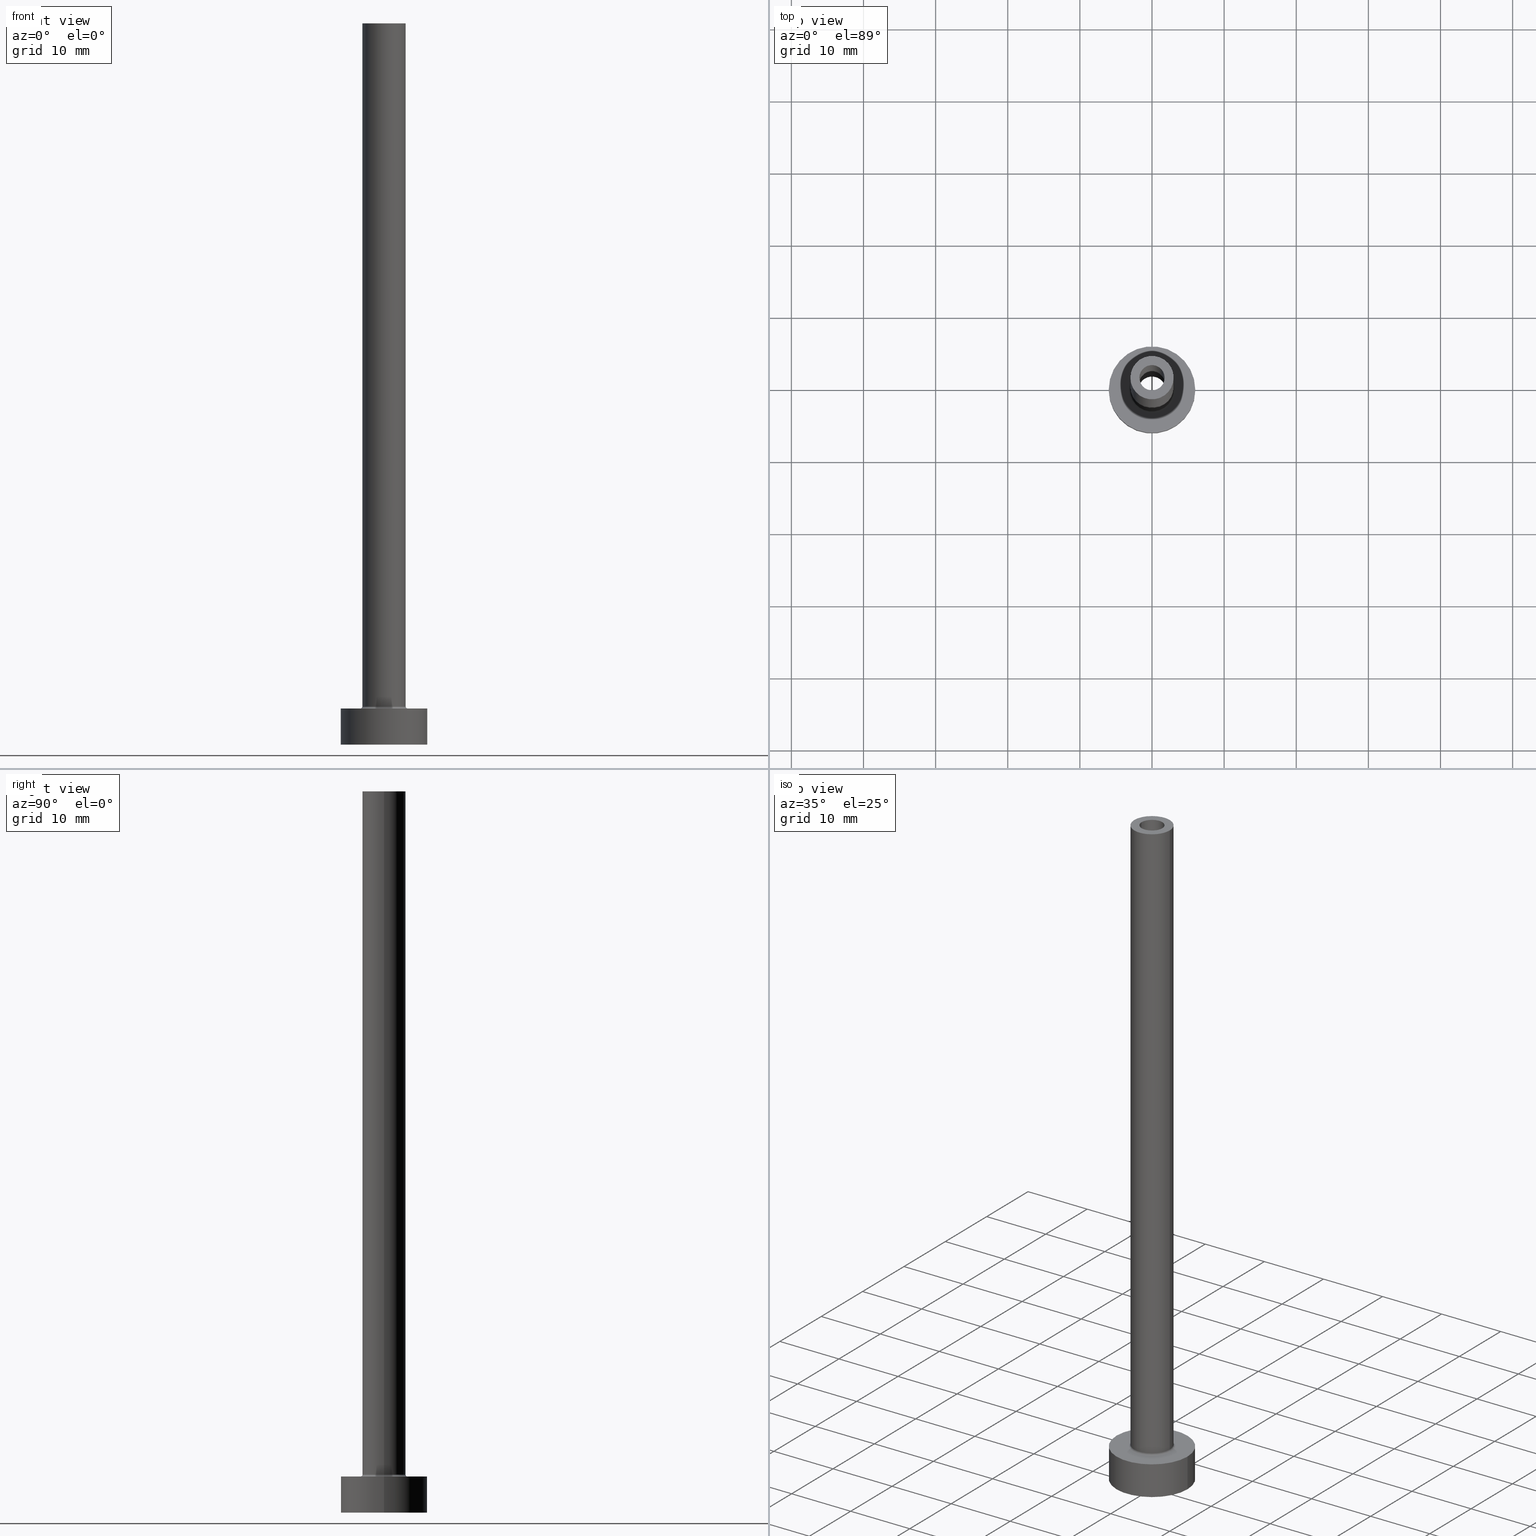
[diagram: canonical four-view strip — front | top / right | iso, engineering-drawing reading convention]
A machine part, canonical four-view strip (front | top / right | iso — engineering-drawing reading convention). The complete STEP part file that produces these views, byte-faithful:
ISO-10303-21;
HEADER;
FILE_DESCRIPTION (( 'STEP AP203' ),
    '1' );
FILE_NAME ('e984.STEP',
    '2023-02-13T12:01:35',
    ( '' ),
    ( '' ),
    'SwSTEP 2.0',
    'SolidWorks 2019',
    '' );
FILE_SCHEMA (( 'CONFIG_CONTROL_DESIGN' ));
ENDSEC;

DATA;
#1 = CARTESIAN_POINT ( 'NONE',  ( -1.899999999999999911, 0.000000000000000000, 55.00000000000000711 ) ) ;
#2 = AXIS2_PLACEMENT_3D ( 'NONE', #15, #163, #232 ) ;
#3 = CARTESIAN_POINT ( 'NONE',  ( 1.899999999999999911, 2.326828918379970872E-16, 55.00000000000000711 ) ) ;
#4 = VERTEX_POINT ( 'NONE', #274 ) ;
#5 = CALENDAR_DATE ( 2023, 13, 2 ) ;
#6 = ORIENTED_EDGE ( 'NONE', *, *, #313, .F. ) ;
#7 = DIRECTION ( 'NONE',  ( -0.000000000000000000, -0.000000000000000000, -1.000000000000000000 ) ) ;
#8 = DIRECTION ( 'NONE',  ( 0.000000000000000000, 0.000000000000000000, 1.000000000000000000 ) ) ;
#9 = VERTEX_POINT ( 'NONE', #439 ) ;
#10 = CARTESIAN_POINT ( 'NONE',  ( 0.000000000000000000, 0.000000000000000000, 5.000000000000000000 ) ) ;
#11 = CIRCLE ( 'NONE', #312, 1.750000000000000000 ) ;
#12 = LOCAL_TIME ( 13, 1, 35.00000000000000000, #120 ) ;
#13 = PLANE ( 'NONE',  #266 ) ;
#14 = CC_DESIGN_PERSON_AND_ORGANIZATION_ASSIGNMENT ( #358, #76, ( #174 ) ) ;
#15 = CARTESIAN_POINT ( 'NONE',  ( 0.000000000000000000, 0.000000000000000000, 5.000000000000000000 ) ) ;
#16 = CARTESIAN_POINT ( 'NONE',  ( 0.000000000000000000, 0.000000000000000000, 55.00000000000000711 ) ) ;
#17 = CARTESIAN_POINT ( 'NONE',  ( 0.000000000000000000, 0.000000000000000000, 0.000000000000000000 ) ) ;
#18 = DATE_AND_TIME ( #341, #12 ) ;
#19 = EDGE_LOOP ( 'NONE', ( #393, #455 ) ) ;
#20 = FACE_OUTER_BOUND ( 'NONE', #301, .T. ) ;
#21 = CIRCLE ( 'NONE', #398, 1.899999999999999911 ) ;
#22 = DATE_TIME_ROLE ( 'classification_date' ) ;
#23 = ORIENTED_EDGE ( 'NONE', *, *, #294, .F. ) ;
#24 = ADVANCED_FACE ( 'NONE', ( #97, #124 ), #13, .T. ) ;
#25 = DIRECTION ( 'NONE',  ( 1.000000000000000000, 0.000000000000000000, 0.000000000000000000 ) ) ;
#26 = DIRECTION ( 'NONE',  ( 0.000000000000000000, 0.000000000000000000, -1.000000000000000000 ) ) ;
#27 = ORIENTED_EDGE ( 'NONE', *, *, #450, .T. ) ;
#28 = AXIS2_PLACEMENT_3D ( 'NONE', #262, #195, #423 ) ;
#29 = DIRECTION ( 'NONE',  ( 0.000000000000000000, 0.000000000000000000, 1.000000000000000000 ) ) ;
#30 = APPROVAL_PERSON_ORGANIZATION ( #74, #64, #459 ) ;
#31 = CC_DESIGN_PERSON_AND_ORGANIZATION_ASSIGNMENT ( #243, #376, ( #61 ) ) ;
#32 = DIRECTION ( 'NONE',  ( 0.000000000000000000, 0.000000000000000000, -1.000000000000000000 ) ) ;
#33 = ORIENTED_EDGE ( 'NONE', *, *, #112, .F. ) ;
#34 = DATE_AND_TIME ( #68, #224 ) ;
#35 = COORDINATED_UNIVERSAL_TIME_OFFSET ( 1, 0, .AHEAD. ) ;
#36 = VECTOR ( 'NONE', #32, 1000.000000000000000 ) ;
#37 = VERTEX_POINT ( 'NONE', #343 ) ;
#38 = DESIGN_CONTEXT ( 'detailed design', #302, 'design' ) ;
#39 = FACE_OUTER_BOUND ( 'NONE', #457, .T. ) ;
#40 = ORIENTED_EDGE ( 'NONE', *, *, #134, .F. ) ;
#41 = CARTESIAN_POINT ( 'NONE',  ( 0.000000000000000000, 0.000000000000000000, 60.37401153701777190 ) ) ;
#42 = AXIS2_PLACEMENT_3D ( 'NONE', #200, #8, #400 ) ;
#43 = DIRECTION ( 'NONE',  ( -1.000000000000000000, 0.000000000000000000, 0.000000000000000000 ) ) ;
#44 = EDGE_LOOP ( 'NONE', ( #40, #45, #338, #404 ) ) ;
#45 = ORIENTED_EDGE ( 'NONE', *, *, #240, .T. ) ;
#46 = CARTESIAN_POINT ( 'NONE',  ( 0.000000000000000000, 0.000000000000000000, 100.0000000000000000 ) ) ;
#47 = EDGE_CURVE ( 'NONE', #345, #166, #65, .T. ) ;
#48 = PLANE ( 'NONE',  #79 ) ;
#49 = CARTESIAN_POINT ( 'NONE',  ( 0.000000000000000000, 0.000000000000000000, 0.000000000000000000 ) ) ;
#50 = CARTESIAN_POINT ( 'NONE',  ( 1.899999999999999911, 2.326828918379970872E-16, 60.37401153701777190 ) ) ;
#51 = CARTESIAN_POINT ( 'NONE',  ( 3.300000000000000266, 0.000000000000000000, 5.299999999999998934 ) ) ;
#52 = ORIENTED_EDGE ( 'NONE', *, *, #47, .T. ) ;
#53 = CARTESIAN_POINT ( 'NONE',  ( 0.000000000000000000, 0.000000000000000000, 5.000000000000000000 ) ) ;
#54 = APPROVAL_ROLE ( '' ) ;
#55 = EDGE_LOOP ( 'NONE', ( #156, #215, #431, #6 ) ) ;
#56 = DIRECTION ( 'NONE',  ( 0.000000000000000000, 0.000000000000000000, 1.000000000000000000 ) ) ;
#57 = APPROVAL_DATE_TIME ( #18, #84 ) ;
#58 = UNCERTAINTY_MEASURE_WITH_UNIT (LENGTH_MEASURE( 1.000000000000000082E-05 ), #317, 'distance_accuracy_value', 'NONE');
#59 = CIRCLE ( 'NONE', #287, 3.000000000000000444 ) ;
#60 = AXIS2_PLACEMENT_3D ( 'NONE', #402, #368, #164 ) ;
#61 = PRODUCT_DEFINITION_FORMATION_WITH_SPECIFIED_SOURCE ( 'LIBOVOLN�', '', #174, .NOT_KNOWN. ) ;
#62 = FACE_OUTER_BOUND ( 'NONE', #159, .T. ) ;
#63 = CYLINDRICAL_SURFACE ( 'NONE', #382, 6.000000000000000888 ) ;
#64 = APPROVAL ( #261, 'NEUR�EN�' ) ;
#65 = CIRCLE ( 'NONE', #289, 1.750000000000000000 ) ;
#66 = AXIS2_PLACEMENT_3D ( 'NONE', #371, #363, #336 ) ;
#67 = DIRECTION ( 'NONE',  ( 0.000000000000000000, 0.000000000000000000, 1.000000000000000000 ) ) ;
#68 = CALENDAR_DATE ( 2023, 13, 2 ) ;
#69 = DIRECTION ( 'NONE',  ( 0.000000000000000000, 0.000000000000000000, 1.000000000000000000 ) ) ;
#70 = CIRCLE ( 'NONE', #260, 1.899999999999999911 ) ;
#71 = LOCAL_TIME ( 13, 1, 35.00000000000000000, #85 ) ;
#72 = DIRECTION ( 'NONE',  ( -0.000000000000000000, -0.000000000000000000, -1.000000000000000000 ) ) ;
#73 = ORIENTED_EDGE ( 'NONE', *, *, #450, .F. ) ;
#74 = PERSON_AND_ORGANIZATION ( #82, #332 ) ;
#75 = ORIENTED_EDGE ( 'NONE', *, *, #294, .T. ) ;
#76 = PERSON_AND_ORGANIZATION_ROLE ( 'design_owner' ) ;
#77 = DIRECTION ( 'NONE',  ( -0.000000000000000000, -0.000000000000000000, -1.000000000000000000 ) ) ;
#78 = VERTEX_POINT ( 'NONE', #443 ) ;
#79 = AXIS2_PLACEMENT_3D ( 'NONE', #17, #167, #129 ) ;
#80 = LINE ( 'NONE', #397, #248 ) ;
#81 = CARTESIAN_POINT ( 'NONE',  ( 0.000000000000000000, 0.000000000000000000, 0.000000000000000000 ) ) ;
#82 = PERSON ( 'NEUR�EN�', 'NEUR�EN�', 'NEUR�EN�', ('NEUR�EN�'), ('NEUR�EN�'), ('NEUR�EN�') ) ;
#83 = DIRECTION ( 'NONE',  ( 1.000000000000000000, 0.000000000000000000, 0.000000000000000000 ) ) ;
#84 = APPROVAL ( #94, 'NEUR�EN�' ) ;
#85 = COORDINATED_UNIVERSAL_TIME_OFFSET ( 1, 0, .AHEAD. ) ;
#86 = CARTESIAN_POINT ( 'NONE',  ( 0.000000000000000000, 0.000000000000000000, 55.00000000000000711 ) ) ;
#87 = DIRECTION ( 'NONE',  ( -1.000000000000000000, 1.224646799147353207E-16, 0.000000000000000000 ) ) ;
#88 = DIRECTION ( 'NONE',  ( 0.000000000000000000, 0.000000000000000000, 1.000000000000000000 ) ) ;
#89 = ORIENTED_EDGE ( 'NONE', *, *, #278, .F. ) ;
#90 = CARTESIAN_POINT ( 'NONE',  ( 1.750000000000000000, 2.143131898507867804E-16, 100.0000000000000000 ) ) ;
#91 = VECTOR ( 'NONE', #72, 1000.000000000000000 ) ;
#92 = SECURITY_CLASSIFICATION ( '', '', #390 ) ;
#93 = FACE_BOUND ( 'NONE', #357, .T. ) ;
#94 = APPROVAL_STATUS ( 'not_yet_approved' ) ;
#95 = ORIENTED_EDGE ( 'NONE', *, *, #324, .T. ) ;
#96 = APPROVAL ( #451, 'NEUR�EN�' ) ;
#97 = FACE_BOUND ( 'NONE', #304, .T. ) ;
#98 = PLANE ( 'NONE',  #209 ) ;
#99 = EDGE_CURVE ( 'NONE', #432, #409, #115, .T. ) ;
#100 = CARTESIAN_POINT ( 'NONE',  ( 0.000000000000000000, 0.000000000000000000, 100.0000000000000000 ) ) ;
#101 = AXIS2_PLACEMENT_3D ( 'NONE', #418, #26, #214 ) ;
#102 = AXIS2_PLACEMENT_3D ( 'NONE', #213, #349, #314 ) ;
#103 = ADVANCED_FACE ( 'NONE', ( #93, #158 ), #372, .T. ) ;
#104 = ORIENTED_EDGE ( 'NONE', *, *, #396, .F. ) ;
#105 = DIRECTION ( 'NONE',  ( -1.000000000000000000, 0.000000000000000000, 0.000000000000000000 ) ) ;
#106 = ORIENTED_EDGE ( 'NONE', *, *, #278, .T. ) ;
#107 = ORIENTED_EDGE ( 'NONE', *, *, #449, .T. ) ;
#108 = AXIS2_PLACEMENT_3D ( 'NONE', #51, #161, #441 ) ;
#109 = CARTESIAN_POINT ( 'NONE',  ( 0.000000000000000000, 0.000000000000000000, 0.000000000000000000 ) ) ;
#110 = EDGE_CURVE ( 'NONE', #118, #9, #70, .T. ) ;
#111 = PERSON_AND_ORGANIZATION ( #82, #332 ) ;
#112 = EDGE_CURVE ( 'NONE', #37, #225, #179, .T. ) ;
#113 = EDGE_CURVE ( 'NONE', #275, #4, #370, .T. ) ;
#114 = APPLICATION_PROTOCOL_DEFINITION ( 'international standard', 'config_control_design', 1994, #302 ) ;
#115 = CIRCLE ( 'NONE', #267, 6.000000000000000888 ) ;
#116 = CARTESIAN_POINT ( 'NONE',  ( -3.300000000000000266, 4.041334437186266003E-16, 4.999999999999999112 ) ) ;
#117 = FACE_OUTER_BOUND ( 'NONE', #424, .T. ) ;
#118 = VERTEX_POINT ( 'NONE', #233 ) ;
#119 = CARTESIAN_POINT ( 'NONE',  ( 3.000000000000000444, 3.673940397442060361E-16, 5.299999999999998934 ) ) ;
#120 = COORDINATED_UNIVERSAL_TIME_OFFSET ( 1, 0, .AHEAD. ) ;
#121 = TOROIDAL_SURFACE ( 'NONE', #394, 3.300000000000000266, 0.2999999999999999889 ) ;
#122 = DIRECTION ( 'NONE',  ( 0.000000000000000000, 0.000000000000000000, -1.000000000000000000 ) ) ;
#123 = ADVANCED_FACE ( 'NONE', ( #20 ), #201, .T. ) ;
#124 = FACE_OUTER_BOUND ( 'NONE', #19, .T. ) ;
#125 = ORIENTED_EDGE ( 'NONE', *, *, #346, .F. ) ;
#126 = DIRECTION ( 'NONE',  ( 0.000000000000000000, 0.000000000000000000, 1.000000000000000000 ) ) ;
#127 = CARTESIAN_POINT ( 'NONE',  ( -1.899999999999999911, 0.000000000000000000, 60.37401153701777190 ) ) ;
#128 = DIRECTION ( 'NONE',  ( 1.000000000000000000, 0.000000000000000000, 0.000000000000000000 ) ) ;
#129 = DIRECTION ( 'NONE',  ( 1.000000000000000000, 0.000000000000000000, -0.000000000000000000 ) ) ;
#130 = AXIS2_PLACEMENT_3D ( 'NONE', #460, #193, #395 ) ;
#131 = EDGE_LOOP ( 'NONE', ( #250, #95 ) ) ;
#132 = FACE_BOUND ( 'NONE', #207, .T. ) ;
#133 = ORIENTED_EDGE ( 'NONE', *, *, #328, .F. ) ;
#134 = EDGE_CURVE ( 'NONE', #265, #9, #307, .T. ) ;
#135 = APPROVAL_ROLE ( '' ) ;
#136 = CARTESIAN_POINT ( 'NONE',  ( 0.000000000000000000, 0.000000000000000000, 0.000000000000000000 ) ) ;
#137 = CIRCLE ( 'NONE', #405, 3.300000000000000266 ) ;
#138 = ORIENTED_EDGE ( 'NONE', *, *, #421, .F. ) ;
#139 = DIRECTION ( 'NONE',  ( -0.000000000000000000, -0.000000000000000000, -1.000000000000000000 ) ) ;
#140 = ORIENTED_EDGE ( 'NONE', *, *, #99, .F. ) ;
#141 = PRODUCT_RELATED_PRODUCT_CATEGORY ( 'detail', '', ( #174 ) ) ;
#142 = MECHANICAL_CONTEXT ( 'NONE', #237, 'mechanical' ) ;
#143 = DIRECTION ( 'NONE',  ( -1.000000000000000000, 0.000000000000000000, 0.000000000000000000 ) ) ;
#144 = CIRCLE ( 'NONE', #223, 1.899999999999999911 ) ;
#145 = DIRECTION ( 'NONE',  ( 1.000000000000000000, 0.000000000000000000, 0.000000000000000000 ) ) ;
#146 = DIRECTION ( 'NONE',  ( 0.000000000000000000, 0.000000000000000000, 1.000000000000000000 ) ) ;
#147 = CALENDAR_DATE ( 2023, 13, 2 ) ;
#148 = ORIENTED_EDGE ( 'NONE', *, *, #430, .T. ) ;
#149 = PERSON_AND_ORGANIZATION_ROLE ( 'creator' ) ;
#150 = CIRCLE ( 'NONE', #337, 0.2999999999999999334 ) ;
#151 = CARTESIAN_POINT ( 'NONE',  ( 0.000000000000000000, 0.000000000000000000, 100.0000000000000000 ) ) ;
#152 = FACE_OUTER_BOUND ( 'NONE', #55, .T. ) ;
#153 = ORIENTED_EDGE ( 'NONE', *, *, #113, .F. ) ;
#154 = CARTESIAN_POINT ( 'NONE',  ( -3.300000000000000266, 4.041334437186266003E-16, 5.299999999999998934 ) ) ;
#155 = DATE_TIME_ROLE ( 'creation_date' ) ;
#156 = ORIENTED_EDGE ( 'NONE', *, *, #276, .F. ) ;
#157 = FACE_OUTER_BOUND ( 'NONE', #448, .T. ) ;
#158 = FACE_OUTER_BOUND ( 'NONE', #131, .T. ) ;
#159 = EDGE_LOOP ( 'NONE', ( #246, #407, #296, #184 ) ) ;
#160 = CC_DESIGN_APPROVAL ( #84, ( #61 ) ) ;
#161 = DIRECTION ( 'NONE',  ( 0.000000000000000000, -1.000000000000000000, 0.000000000000000000 ) ) ;
#162 = DIRECTION ( 'NONE',  ( 1.000000000000000000, 0.000000000000000000, 0.000000000000000000 ) ) ;
#163 = DIRECTION ( 'NONE',  ( -0.000000000000000000, -0.000000000000000000, -1.000000000000000000 ) ) ;
#164 = DIRECTION ( 'NONE',  ( 1.000000000000000000, 0.000000000000000000, 0.000000000000000000 ) ) ;
#165 = PERSON_AND_ORGANIZATION ( #82, #332 ) ;
#166 = VERTEX_POINT ( 'NONE', #388 ) ;
#167 = DIRECTION ( 'NONE',  ( 0.000000000000000000, 0.000000000000000000, 1.000000000000000000 ) ) ;
#168 = CARTESIAN_POINT ( 'NONE',  ( 3.000000000000000444, 3.673940397442060361E-16, 100.0000000000000000 ) ) ;
#169 = CLOSED_SHELL ( 'NONE', ( #173, #251, #426, #177, #444, #123, #103, #417, #212, #24, #211, #185, #425, #192 ) ) ;
#170 = APPROVAL_PERSON_ORGANIZATION ( #210, #96, #135 ) ;
#171 = DIRECTION ( 'NONE',  ( -1.000000000000000000, 0.000000000000000000, 0.000000000000000000 ) ) ;
#172 = ORIENTED_EDGE ( 'NONE', *, *, #176, .T. ) ;
#173 = ADVANCED_FACE ( 'NONE', ( #391 ), #411, .F. ) ;
#174 = PRODUCT ( 'e984', 'e984', '', ( #142 ) ) ;
#175 = ORIENTED_EDGE ( 'NONE', *, *, #240, .F. ) ;
#176 = EDGE_CURVE ( 'NONE', #166, #345, #11, .T. ) ;
#177 = ADVANCED_FACE ( 'NONE', ( #62 ), #350, .T. ) ;
#178 = DIRECTION ( 'NONE',  ( -1.000000000000000000, 0.000000000000000000, 0.000000000000000000 ) ) ;
#179 = CIRCLE ( 'NONE', #255, 1.750000000000000000 ) ;
#180 = CC_DESIGN_SECURITY_CLASSIFICATION ( #92, ( #61 ) ) ;
#181 = EDGE_LOOP ( 'NONE', ( #191, #27, #148, #205 ) ) ;
#182 = DIRECTION ( 'NONE',  ( -0.000000000000000000, -0.000000000000000000, -1.000000000000000000 ) ) ;
#183 = APPROVAL_DATE_TIME ( #34, #96 ) ;
#184 = ORIENTED_EDGE ( 'NONE', *, *, #254, .F. ) ;
#185 = ADVANCED_FACE ( 'NONE', ( #310 ), #281, .F. ) ;
#186 = DIRECTION ( 'NONE',  ( 1.000000000000000000, 0.000000000000000000, 0.000000000000000000 ) ) ;
#187 = VECTOR ( 'NONE', #323, 1000.000000000000000 ) ;
#188 = CIRCLE ( 'NONE', #102, 1.750000000000000000 ) ;
#189 = CARTESIAN_POINT ( 'NONE',  ( -3.000000000000000444, 0.000000000000000000, 100.0000000000000000 ) ) ;
#190 = ORIENTED_EDGE ( 'NONE', *, *, #110, .F. ) ;
#191 = ORIENTED_EDGE ( 'NONE', *, *, #324, .F. ) ;
#192 = ADVANCED_FACE ( 'NONE', ( #284 ), #387, .F. ) ;
#193 = DIRECTION ( 'NONE',  ( 0.000000000000000000, 0.000000000000000000, 1.000000000000000000 ) ) ;
#194 = ADVANCED_BREP_SHAPE_REPRESENTATION ( 'e984', ( #299, #300 ), #218 ) ;
#195 = DIRECTION ( 'NONE',  ( 0.000000000000000000, 0.000000000000000000, 1.000000000000000000 ) ) ;
#196 = DATE_AND_TIME ( #147, #290 ) ;
#197 = AXIS2_PLACEMENT_3D ( 'NONE', #252, #283, #178 ) ;
#198 = CARTESIAN_POINT ( 'NONE',  ( 3.000000000000000444, 3.673940397442060361E-16, 100.0000000000000000 ) ) ;
#199 = CARTESIAN_POINT ( 'NONE',  ( -6.000000000000000888, 0.000000000000000000, 5.000000000000000000 ) ) ;
#200 = CARTESIAN_POINT ( 'NONE',  ( 0.000000000000000000, 0.000000000000000000, 5.000000000000000000 ) ) ;
#201 = CYLINDRICAL_SURFACE ( 'NONE', #413, 6.000000000000000888 ) ;
#202 = DIRECTION ( 'NONE',  ( 0.000000000000000000, 0.000000000000000000, -1.000000000000000000 ) ) ;
#203 = ORIENTED_EDGE ( 'NONE', *, *, #220, .F. ) ;
#204 = AXIS2_PLACEMENT_3D ( 'NONE', #49, #438, #297 ) ;
#205 = ORIENTED_EDGE ( 'NONE', *, *, #359, .F. ) ;
#206 = DIRECTION ( 'NONE',  ( 1.000000000000000000, 0.000000000000000000, -0.000000000000000000 ) ) ;
#207 = EDGE_LOOP ( 'NONE', ( #401, #107 ) ) ;
#208 = DIRECTION ( 'NONE',  ( 1.000000000000000000, 0.000000000000000000, -0.000000000000000000 ) ) ;
#209 = AXIS2_PLACEMENT_3D ( 'NONE', #244, #377, #208 ) ;
#210 = PERSON_AND_ORGANIZATION ( #82, #332 ) ;
#211 = ADVANCED_FACE ( 'NONE', ( #152 ), #121, .F. ) ;
#212 = ADVANCED_FACE ( 'NONE', ( #117 ), #259, .T. ) ;
#213 = CARTESIAN_POINT ( 'NONE',  ( 0.000000000000000000, 0.000000000000000000, 55.00000000000000711 ) ) ;
#214 = DIRECTION ( 'NONE',  ( -1.000000000000000000, 0.000000000000000000, 0.000000000000000000 ) ) ;
#215 = ORIENTED_EDGE ( 'NONE', *, *, #316, .F. ) ;
#216 = CC_DESIGN_DATE_AND_TIME_ASSIGNMENT ( #412, #22, ( #92 ) ) ;
#217 = CIRCLE ( 'NONE', #204, 1.899999999999999911 ) ;
#218 =( GEOMETRIC_REPRESENTATION_CONTEXT ( 3 ) GLOBAL_UNCERTAINTY_ASSIGNED_CONTEXT ( ( #58 ) ) GLOBAL_UNIT_ASSIGNED_CONTEXT ( ( #317, #356, #452 ) ) REPRESENTATION_CONTEXT ( 'NONE', 'WORKASPACE' ) );
#219 = PERSON_AND_ORGANIZATION ( #82, #332 ) ;
#220 = EDGE_CURVE ( 'NONE', #379, #351, #354, .T. ) ;
#221 = DIRECTION ( 'NONE',  ( -1.000000000000000000, 0.000000000000000000, 0.000000000000000000 ) ) ;
#222 = DIRECTION ( 'NONE',  ( 0.000000000000000000, 0.000000000000000000, 1.000000000000000000 ) ) ;
#223 = AXIS2_PLACEMENT_3D ( 'NONE', #258, #222, #325 ) ;
#224 = LOCAL_TIME ( 13, 1, 35.00000000000000000, #35 ) ;
#225 = VERTEX_POINT ( 'NONE', #229 ) ;
#226 = CARTESIAN_POINT ( 'NONE',  ( -3.000000000000000444, 0.000000000000000000, 100.0000000000000000 ) ) ;
#227 = DIRECTION ( 'NONE',  ( 0.000000000000000000, 0.000000000000000000, -1.000000000000000000 ) ) ;
#228 = COORDINATED_UNIVERSAL_TIME_OFFSET ( 1, 0, .AHEAD. ) ;
#229 = CARTESIAN_POINT ( 'NONE',  ( 1.750000000000000000, 2.143131898507867804E-16, 55.00000000000000711 ) ) ;
#230 = ORIENTED_EDGE ( 'NONE', *, *, #264, .F. ) ;
#231 = VECTOR ( 'NONE', #437, 1000.000000000000000 ) ;
#232 = DIRECTION ( 'NONE',  ( 1.000000000000000000, 0.000000000000000000, 0.000000000000000000 ) ) ;
#233 = CARTESIAN_POINT ( 'NONE',  ( -1.899999999999999911, 0.000000000000000000, 0.000000000000000000 ) ) ;
#234 = DIRECTION ( 'NONE',  ( 0.000000000000000000, 0.000000000000000000, 1.000000000000000000 ) ) ;
#235 = DIRECTION ( 'NONE',  ( 1.224646799147353207E-16, 1.000000000000000000, -0.000000000000000000 ) ) ;
#236 = FACE_OUTER_BOUND ( 'NONE', #322, .T. ) ;
#237 = APPLICATION_CONTEXT ( 'configuration controlled 3d designs of mechanical parts and assemblies' ) ;
#238 = DIRECTION ( 'NONE',  ( 0.000000000000000000, 0.000000000000000000, 1.000000000000000000 ) ) ;
#239 = AXIS2_PLACEMENT_3D ( 'NONE', #360, #227, #221 ) ;
#240 = EDGE_CURVE ( 'NONE', #265, #384, #144, .T. ) ;
#241 = DIRECTION ( 'NONE',  ( -0.000000000000000000, -0.000000000000000000, -1.000000000000000000 ) ) ;
#242 = CARTESIAN_POINT ( 'NONE',  ( 0.000000000000000000, 0.000000000000000000, 100.0000000000000000 ) ) ;
#243 = PERSON_AND_ORGANIZATION ( #82, #332 ) ;
#244 = CARTESIAN_POINT ( 'NONE',  ( 0.000000000000000000, 0.000000000000000000, 55.00000000000000711 ) ) ;
#245 = CC_DESIGN_DATE_AND_TIME_ASSIGNMENT ( #270, #155, ( #263 ) ) ;
#246 = ORIENTED_EDGE ( 'NONE', *, *, #386, .F. ) ;
#247 = DIRECTION ( 'NONE',  ( 1.000000000000000000, 0.000000000000000000, 0.000000000000000000 ) ) ;
#248 = VECTOR ( 'NONE', #202, 1000.000000000000000 ) ;
#249 = DIRECTION ( 'NONE',  ( 0.000000000000000000, 0.000000000000000000, 1.000000000000000000 ) ) ;
#250 = ORIENTED_EDGE ( 'NONE', *, *, #113, .T. ) ;
#251 = ADVANCED_FACE ( 'NONE', ( #39 ), #392, .F. ) ;
#252 = CARTESIAN_POINT ( 'NONE',  ( 0.000000000000000000, 0.000000000000000000, 100.0000000000000000 ) ) ;
#253 = ORIENTED_EDGE ( 'NONE', *, *, #389, .T. ) ;
#254 = EDGE_CURVE ( 'NONE', #379, #419, #329, .T. ) ;
#255 = AXIS2_PLACEMENT_3D ( 'NONE', #16, #238, #162 ) ;
#256 = SHAPE_DEFINITION_REPRESENTATION ( #330, #194 ) ;
#257 = LINE ( 'NONE', #90, #231 ) ;
#258 = CARTESIAN_POINT ( 'NONE',  ( 0.000000000000000000, 0.000000000000000000, 55.00000000000000711 ) ) ;
#259 = CYLINDRICAL_SURFACE ( 'NONE', #331, 3.000000000000000444 ) ;
#260 = AXIS2_PLACEMENT_3D ( 'NONE', #81, #298, #435 ) ;
#261 = APPROVAL_STATUS ( 'not_yet_approved' ) ;
#262 = CARTESIAN_POINT ( 'NONE',  ( 0.000000000000000000, 0.000000000000000000, 100.0000000000000000 ) ) ;
#263 = PRODUCT_DEFINITION ( 'NEZN�M�', '', #61, #38 ) ;
#264 = EDGE_CURVE ( 'NONE', #419, #362, #280, .T. ) ;
#265 = VERTEX_POINT ( 'NONE', #3 ) ;
#266 = AXIS2_PLACEMENT_3D ( 'NONE', #46, #126, #340 ) ;
#267 = AXIS2_PLACEMENT_3D ( 'NONE', #375, #56, #128 ) ;
#268 = CC_DESIGN_PERSON_AND_ORGANIZATION_ASSIGNMENT ( #219, #149, ( #61 ) ) ;
#269 = DIRECTION ( 'NONE',  ( 1.000000000000000000, 0.000000000000000000, 0.000000000000000000 ) ) ;
#270 = DATE_AND_TIME ( #5, #71 ) ;
#271 = ORIENTED_EDGE ( 'NONE', *, *, #254, .T. ) ;
#272 = CIRCLE ( 'NONE', #66, 3.000000000000000444 ) ;
#273 = VECTOR ( 'NONE', #139, 1000.000000000000000 ) ;
#274 = CARTESIAN_POINT ( 'NONE',  ( 6.000000000000000888, 7.347880794884120722E-16, 5.000000000000000000 ) ) ;
#275 = VERTEX_POINT ( 'NONE', #327 ) ;
#276 = EDGE_CURVE ( 'NONE', #419, #369, #150, .T. ) ;
#277 = COORDINATED_UNIVERSAL_TIME_OFFSET ( 1, 0, .AHEAD. ) ;
#278 = EDGE_CURVE ( 'NONE', #78, #369, #137, .T. ) ;
#279 = LINE ( 'NONE', #353, #273 ) ;
#280 = CIRCLE ( 'NONE', #130, 3.000000000000000444 ) ;
#281 = CYLINDRICAL_SURFACE ( 'NONE', #427, 1.899999999999999911 ) ;
#282 = ORIENTED_EDGE ( 'NONE', *, *, #308, .T. ) ;
#283 = DIRECTION ( 'NONE',  ( -0.000000000000000000, -0.000000000000000000, -1.000000000000000000 ) ) ;
#284 = FACE_OUTER_BOUND ( 'NONE', #461, .T. ) ;
#285 = ORIENTED_EDGE ( 'NONE', *, *, #47, .F. ) ;
#286 = CARTESIAN_POINT ( 'NONE',  ( 0.000000000000000000, 0.000000000000000000, 5.299999999999998934 ) ) ;
#287 = AXIS2_PLACEMENT_3D ( 'NONE', #151, #293, #145 ) ;
#288 = CARTESIAN_POINT ( 'NONE',  ( 0.000000000000000000, 0.000000000000000000, 100.0000000000000000 ) ) ;
#289 = AXIS2_PLACEMENT_3D ( 'NONE', #242, #399, #269 ) ;
#290 = LOCAL_TIME ( 13, 1, 35.00000000000000000, #228 ) ;
#291 = EDGE_LOOP ( 'NONE', ( #104, #175 ) ) ;
#292 = ORIENTED_EDGE ( 'NONE', *, *, #134, .T. ) ;
#293 = DIRECTION ( 'NONE',  ( 0.000000000000000000, 0.000000000000000000, 1.000000000000000000 ) ) ;
#294 = EDGE_CURVE ( 'NONE', #9, #118, #217, .T. ) ;
#295 = LINE ( 'NONE', #127, #420 ) ;
#296 = ORIENTED_EDGE ( 'NONE', *, *, #316, .T. ) ;
#297 = DIRECTION ( 'NONE',  ( 1.000000000000000000, 0.000000000000000000, 0.000000000000000000 ) ) ;
#298 = DIRECTION ( 'NONE',  ( -0.000000000000000000, -0.000000000000000000, -1.000000000000000000 ) ) ;
#299 = MANIFOLD_SOLID_BREP ( 'Odebrat vysunut�m4', #169 ) ;
#300 = AXIS2_PLACEMENT_3D ( 'NONE', #109, #69, #25 ) ;
#301 = EDGE_LOOP ( 'NONE', ( #73, #153, #373, #348 ) ) ;
#302 = APPLICATION_CONTEXT ( 'configuration controlled 3d designs of mechanical parts and assemblies' ) ;
#303 = DIRECTION ( 'NONE',  ( -0.000000000000000000, -0.000000000000000000, -1.000000000000000000 ) ) ;
#304 = EDGE_LOOP ( 'NONE', ( #403, #285 ) ) ;
#305 = ORIENTED_EDGE ( 'NONE', *, *, #276, .T. ) ;
#306 = CIRCLE ( 'NONE', #108, 0.2999999999999999334 ) ;
#307 = LINE ( 'NONE', #50, #36 ) ;
#308 = EDGE_CURVE ( 'NONE', #166, #37, #80, .T. ) ;
#309 = CARTESIAN_POINT ( 'NONE',  ( -6.000000000000000888, 0.000000000000000000, 0.000000000000000000 ) ) ;
#310 = FACE_OUTER_BOUND ( 'NONE', #44, .T. ) ;
#311 = FACE_OUTER_BOUND ( 'NONE', #181, .T. ) ;
#312 = AXIS2_PLACEMENT_3D ( 'NONE', #100, #249, #383 ) ;
#313 = EDGE_CURVE ( 'NONE', #369, #78, #453, .T. ) ;
#314 = DIRECTION ( 'NONE',  ( 1.000000000000000000, 0.000000000000000000, 0.000000000000000000 ) ) ;
#315 = ORIENTED_EDGE ( 'NONE', *, *, #389, .F. ) ;
#316 = EDGE_CURVE ( 'NONE', #362, #419, #272, .T. ) ;
#317 =( LENGTH_UNIT ( ) NAMED_UNIT ( * ) SI_UNIT ( .MILLI., .METRE. ) );
#318 = DIRECTION ( 'NONE',  ( 0.000000000000000000, 0.000000000000000000, -1.000000000000000000 ) ) ;
#319 = AXIS2_PLACEMENT_3D ( 'NONE', #385, #67, #410 ) ;
#320 = AXIS2_PLACEMENT_3D ( 'NONE', #41, #318, #143 ) ;
#321 = LOCAL_TIME ( 13, 1, 35.00000000000000000, #277 ) ;
#322 = EDGE_LOOP ( 'NONE', ( #140, #440 ) ) ;
#323 = DIRECTION ( 'NONE',  ( -0.000000000000000000, -0.000000000000000000, -1.000000000000000000 ) ) ;
#324 = EDGE_CURVE ( 'NONE', #4, #275, #445, .T. ) ;
#325 = DIRECTION ( 'NONE',  ( 1.000000000000000000, 0.000000000000000000, 0.000000000000000000 ) ) ;
#326 = LINE ( 'NONE', #199, #187 ) ;
#327 = CARTESIAN_POINT ( 'NONE',  ( -6.000000000000000888, 0.000000000000000000, 5.000000000000000000 ) ) ;
#328 = EDGE_CURVE ( 'NONE', #362, #78, #306, .T. ) ;
#329 = LINE ( 'NONE', #189, #91 ) ;
#330 = PRODUCT_DEFINITION_SHAPE ( 'NONE', 'NONE',  #263 ) ;
#331 = AXIS2_PLACEMENT_3D ( 'NONE', #288, #77, #43 ) ;
#332 = ORGANIZATION ( 'NEUR�EN�', 'NEUR�EN�', '' ) ;
#333 = APPROVAL_DATE_TIME ( #196, #64 ) ;
#334 = EDGE_LOOP ( 'NONE', ( #172, #253, #33, #335 ) ) ;
#335 = ORIENTED_EDGE ( 'NONE', *, *, #308, .F. ) ;
#336 = DIRECTION ( 'NONE',  ( 1.000000000000000000, 0.000000000000000000, 0.000000000000000000 ) ) ;
#337 = AXIS2_PLACEMENT_3D ( 'NONE', #154, #235, #87 ) ;
#338 = ORIENTED_EDGE ( 'NONE', *, *, #346, .T. ) ;
#339 = CC_DESIGN_APPROVAL ( #64, ( #263 ) ) ;
#340 = DIRECTION ( 'NONE',  ( 1.000000000000000000, 0.000000000000000000, -0.000000000000000000 ) ) ;
#341 = CALENDAR_DATE ( 2023, 13, 2 ) ;
#342 = LINE ( 'NONE', #168, #347 ) ;
#343 = CARTESIAN_POINT ( 'NONE',  ( -1.750000000000000000, 0.000000000000000000, 55.00000000000000711 ) ) ;
#344 = PERSON_AND_ORGANIZATION_ROLE ( 'classification_officer' ) ;
#345 = VERTEX_POINT ( 'NONE', #433 ) ;
#346 = EDGE_CURVE ( 'NONE', #384, #118, #295, .T. ) ;
#347 = VECTOR ( 'NONE', #7, 1000.000000000000000 ) ;
#348 = ORIENTED_EDGE ( 'NONE', *, *, #99, .T. ) ;
#349 = DIRECTION ( 'NONE',  ( 0.000000000000000000, 0.000000000000000000, 1.000000000000000000 ) ) ;
#350 = CYLINDRICAL_SURFACE ( 'NONE', #197, 3.000000000000000444 ) ;
#351 = VERTEX_POINT ( 'NONE', #198 ) ;
#352 = DIRECTION ( 'NONE',  ( -1.000000000000000000, 0.000000000000000000, 0.000000000000000000 ) ) ;
#353 = CARTESIAN_POINT ( 'NONE',  ( 6.000000000000000888, 7.347880794884120722E-16, 5.000000000000000000 ) ) ;
#354 = CIRCLE ( 'NONE', #28, 3.000000000000000444 ) ;
#355 = EDGE_LOOP ( 'NONE', ( #190, #23 ) ) ;
#356 =( NAMED_UNIT ( * ) PLANE_ANGLE_UNIT ( ) SI_UNIT ( $, .RADIAN. ) );
#357 = EDGE_LOOP ( 'NONE', ( #106, #429 ) ) ;
#358 = PERSON_AND_ORGANIZATION ( #82, #332 ) ;
#359 = EDGE_CURVE ( 'NONE', #275, #432, #326, .T. ) ;
#360 = CARTESIAN_POINT ( 'NONE',  ( 0.000000000000000000, 0.000000000000000000, 100.0000000000000000 ) ) ;
#361 = APPROVAL_PERSON_ORGANIZATION ( #406, #84, #54 ) ;
#362 = VERTEX_POINT ( 'NONE', #119 ) ;
#363 = DIRECTION ( 'NONE',  ( 0.000000000000000000, 0.000000000000000000, 1.000000000000000000 ) ) ;
#364 = CC_DESIGN_PERSON_AND_ORGANIZATION_ASSIGNMENT ( #111, #344, ( #92 ) ) ;
#365 = CARTESIAN_POINT ( 'NONE',  ( 0.000000000000000000, 0.000000000000000000, 5.000000000000000000 ) ) ;
#366 = FACE_BOUND ( 'NONE', #355, .T. ) ;
#367 = DIRECTION ( 'NONE',  ( 1.000000000000000000, 0.000000000000000000, 0.000000000000000000 ) ) ;
#368 = DIRECTION ( 'NONE',  ( 0.000000000000000000, 0.000000000000000000, 1.000000000000000000 ) ) ;
#369 = VERTEX_POINT ( 'NONE', #116 ) ;
#370 = CIRCLE ( 'NONE', #60, 6.000000000000000888 ) ;
#371 = CARTESIAN_POINT ( 'NONE',  ( 0.000000000000000000, 0.000000000000000000, 5.299999999999998934 ) ) ;
#372 = PLANE ( 'NONE',  #380 ) ;
#373 = ORIENTED_EDGE ( 'NONE', *, *, #359, .T. ) ;
#374 = CARTESIAN_POINT ( 'NONE',  ( -3.000000000000000444, 0.000000000000000000, 5.299999999999998934 ) ) ;
#375 = CARTESIAN_POINT ( 'NONE',  ( 0.000000000000000000, 0.000000000000000000, 0.000000000000000000 ) ) ;
#376 = PERSON_AND_ORGANIZATION_ROLE ( 'design_supplier' ) ;
#377 = DIRECTION ( 'NONE',  ( 0.000000000000000000, 0.000000000000000000, 1.000000000000000000 ) ) ;
#378 = CALENDAR_DATE ( 2023, 13, 2 ) ;
#379 = VERTEX_POINT ( 'NONE', #226 ) ;
#380 = AXIS2_PLACEMENT_3D ( 'NONE', #365, #88, #206 ) ;
#381 = CARTESIAN_POINT ( 'NONE',  ( 0.000000000000000000, 0.000000000000000000, 5.000000000000000000 ) ) ;
#382 = AXIS2_PLACEMENT_3D ( 'NONE', #381, #182, #352 ) ;
#383 = DIRECTION ( 'NONE',  ( 1.000000000000000000, 0.000000000000000000, 0.000000000000000000 ) ) ;
#384 = VERTEX_POINT ( 'NONE', #1 ) ;
#385 = CARTESIAN_POINT ( 'NONE',  ( 0.000000000000000000, 0.000000000000000000, 5.299999999999998934 ) ) ;
#386 = EDGE_CURVE ( 'NONE', #351, #379, #59, .T. ) ;
#387 = CYLINDRICAL_SURFACE ( 'NONE', #239, 1.750000000000000000 ) ;
#388 = CARTESIAN_POINT ( 'NONE',  ( -1.750000000000000000, 0.000000000000000000, 100.0000000000000000 ) ) ;
#389 = EDGE_CURVE ( 'NONE', #345, #225, #257, .T. ) ;
#390 = SECURITY_CLASSIFICATION_LEVEL ( 'unclassified' ) ;
#391 = FACE_OUTER_BOUND ( 'NONE', #334, .T. ) ;
#392 = CYLINDRICAL_SURFACE ( 'NONE', #320, 1.899999999999999911 ) ;
#393 = ORIENTED_EDGE ( 'NONE', *, *, #220, .T. ) ;
#394 = AXIS2_PLACEMENT_3D ( 'NONE', #286, #146, #186 ) ;
#395 = DIRECTION ( 'NONE',  ( 1.000000000000000000, 0.000000000000000000, 0.000000000000000000 ) ) ;
#396 = EDGE_CURVE ( 'NONE', #384, #265, #21, .T. ) ;
#397 = CARTESIAN_POINT ( 'NONE',  ( -1.750000000000000000, 0.000000000000000000, 100.0000000000000000 ) ) ;
#398 = AXIS2_PLACEMENT_3D ( 'NONE', #86, #234, #83 ) ;
#399 = DIRECTION ( 'NONE',  ( 0.000000000000000000, 0.000000000000000000, 1.000000000000000000 ) ) ;
#400 = DIRECTION ( 'NONE',  ( 1.000000000000000000, 0.000000000000000000, 0.000000000000000000 ) ) ;
#401 = ORIENTED_EDGE ( 'NONE', *, *, #112, .T. ) ;
#402 = CARTESIAN_POINT ( 'NONE',  ( 0.000000000000000000, 0.000000000000000000, 5.000000000000000000 ) ) ;
#403 = ORIENTED_EDGE ( 'NONE', *, *, #176, .F. ) ;
#404 = ORIENTED_EDGE ( 'NONE', *, *, #110, .T. ) ;
#405 = AXIS2_PLACEMENT_3D ( 'NONE', #10, #241, #367 ) ;
#406 = PERSON_AND_ORGANIZATION ( #82, #332 ) ;
#407 = ORIENTED_EDGE ( 'NONE', *, *, #421, .T. ) ;
#408 = FACE_OUTER_BOUND ( 'NONE', #291, .T. ) ;
#409 = VERTEX_POINT ( 'NONE', #447 ) ;
#410 = DIRECTION ( 'NONE',  ( 1.000000000000000000, 0.000000000000000000, 0.000000000000000000 ) ) ;
#411 = CYLINDRICAL_SURFACE ( 'NONE', #101, 1.750000000000000000 ) ;
#412 = DATE_AND_TIME ( #378, #321 ) ;
#413 = AXIS2_PLACEMENT_3D ( 'NONE', #53, #303, #171 ) ;
#414 = CC_DESIGN_APPROVAL ( #96, ( #92 ) ) ;
#415 = CARTESIAN_POINT ( 'NONE',  ( 0.000000000000000000, 0.000000000000000000, 60.37401153701777190 ) ) ;
#416 = ORIENTED_EDGE ( 'NONE', *, *, #396, .T. ) ;
#417 = ADVANCED_FACE ( 'NONE', ( #366, #236 ), #48, .F. ) ;
#418 = CARTESIAN_POINT ( 'NONE',  ( 0.000000000000000000, 0.000000000000000000, 100.0000000000000000 ) ) ;
#419 = VERTEX_POINT ( 'NONE', #374 ) ;
#420 = VECTOR ( 'NONE', #122, 1000.000000000000000 ) ;
#421 = EDGE_CURVE ( 'NONE', #351, #362, #342, .T. ) ;
#422 = ORIENTED_EDGE ( 'NONE', *, *, #264, .T. ) ;
#423 = DIRECTION ( 'NONE',  ( 1.000000000000000000, 0.000000000000000000, 0.000000000000000000 ) ) ;
#424 = EDGE_LOOP ( 'NONE', ( #138, #203, #271, #422 ) ) ;
#425 = ADVANCED_FACE ( 'NONE', ( #132, #408 ), #98, .F. ) ;
#426 = ADVANCED_FACE ( 'NONE', ( #157 ), #458, .F. ) ;
#427 = AXIS2_PLACEMENT_3D ( 'NONE', #415, #456, #105 ) ;
#428 = AXIS2_PLACEMENT_3D ( 'NONE', #136, #29, #247 ) ;
#429 = ORIENTED_EDGE ( 'NONE', *, *, #313, .T. ) ;
#430 = EDGE_CURVE ( 'NONE', #409, #432, #434, .T. ) ;
#431 = ORIENTED_EDGE ( 'NONE', *, *, #328, .T. ) ;
#432 = VERTEX_POINT ( 'NONE', #309 ) ;
#433 = CARTESIAN_POINT ( 'NONE',  ( 1.750000000000000000, 2.143131898507867804E-16, 100.0000000000000000 ) ) ;
#434 = CIRCLE ( 'NONE', #428, 6.000000000000000888 ) ;
#435 = DIRECTION ( 'NONE',  ( 1.000000000000000000, 0.000000000000000000, 0.000000000000000000 ) ) ;
#436 = PERSON_AND_ORGANIZATION_ROLE ( 'creator' ) ;
#437 = DIRECTION ( 'NONE',  ( 0.000000000000000000, 0.000000000000000000, -1.000000000000000000 ) ) ;
#438 = DIRECTION ( 'NONE',  ( -0.000000000000000000, -0.000000000000000000, -1.000000000000000000 ) ) ;
#439 = CARTESIAN_POINT ( 'NONE',  ( 1.899999999999999911, 2.326828918379970872E-16, 0.000000000000000000 ) ) ;
#440 = ORIENTED_EDGE ( 'NONE', *, *, #430, .F. ) ;
#441 = DIRECTION ( 'NONE',  ( 0.000000000000000000, 0.000000000000000000, -1.000000000000000000 ) ) ;
#442 = CC_DESIGN_PERSON_AND_ORGANIZATION_ASSIGNMENT ( #165, #436, ( #263 ) ) ;
#443 = CARTESIAN_POINT ( 'NONE',  ( 3.300000000000000266, 0.000000000000000000, 4.999999999999999112 ) ) ;
#444 = ADVANCED_FACE ( 'NONE', ( #311 ), #63, .T. ) ;
#445 = CIRCLE ( 'NONE', #42, 6.000000000000000888 ) ;
#446 = ORIENTED_EDGE ( 'NONE', *, *, #449, .F. ) ;
#447 = CARTESIAN_POINT ( 'NONE',  ( 6.000000000000000888, 7.347880794884120722E-16, 0.000000000000000000 ) ) ;
#448 = EDGE_LOOP ( 'NONE', ( #230, #305, #89, #133 ) ) ;
#449 = EDGE_CURVE ( 'NONE', #225, #37, #188, .T. ) ;
#450 = EDGE_CURVE ( 'NONE', #4, #409, #279, .T. ) ;
#451 = APPROVAL_STATUS ( 'not_yet_approved' ) ;
#452 =( NAMED_UNIT ( * ) SI_UNIT ( $, .STERADIAN. ) SOLID_ANGLE_UNIT ( ) );
#453 = CIRCLE ( 'NONE', #2, 3.300000000000000266 ) ;
#454 = APPLICATION_PROTOCOL_DEFINITION ( 'international standard', 'config_control_design', 1994, #237 ) ;
#455 = ORIENTED_EDGE ( 'NONE', *, *, #386, .T. ) ;
#456 = DIRECTION ( 'NONE',  ( 0.000000000000000000, 0.000000000000000000, -1.000000000000000000 ) ) ;
#457 = EDGE_LOOP ( 'NONE', ( #416, #292, #75, #125 ) ) ;
#458 = TOROIDAL_SURFACE ( 'NONE', #319, 3.300000000000000266, 0.2999999999999999889 ) ;
#459 = APPROVAL_ROLE ( '' ) ;
#460 = CARTESIAN_POINT ( 'NONE',  ( 0.000000000000000000, 0.000000000000000000, 5.299999999999998934 ) ) ;
#461 = EDGE_LOOP ( 'NONE', ( #315, #52, #282, #446 ) ) ;
ENDSEC;
END-ISO-10303-21;
